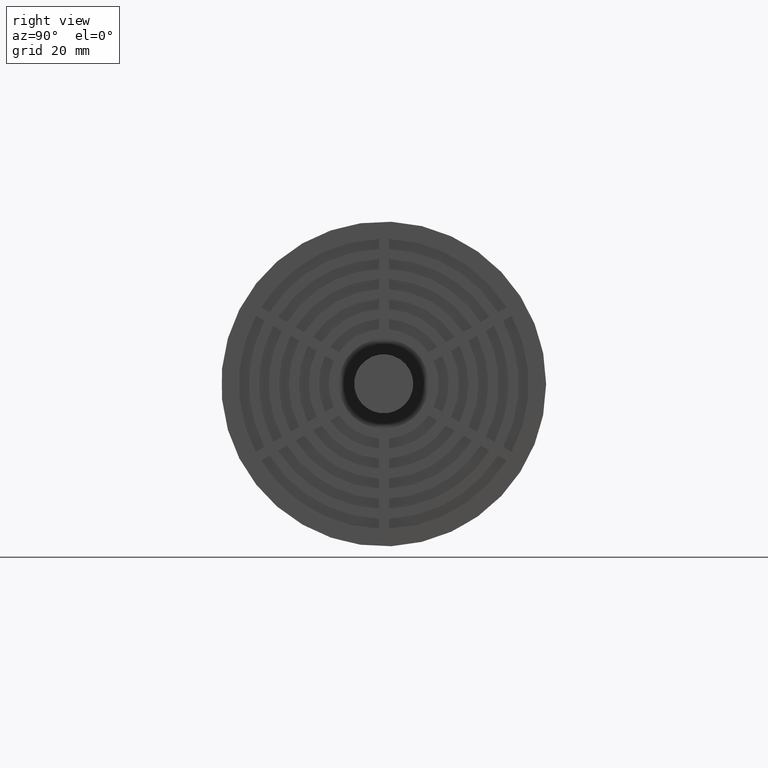
[diagram: clean part render]
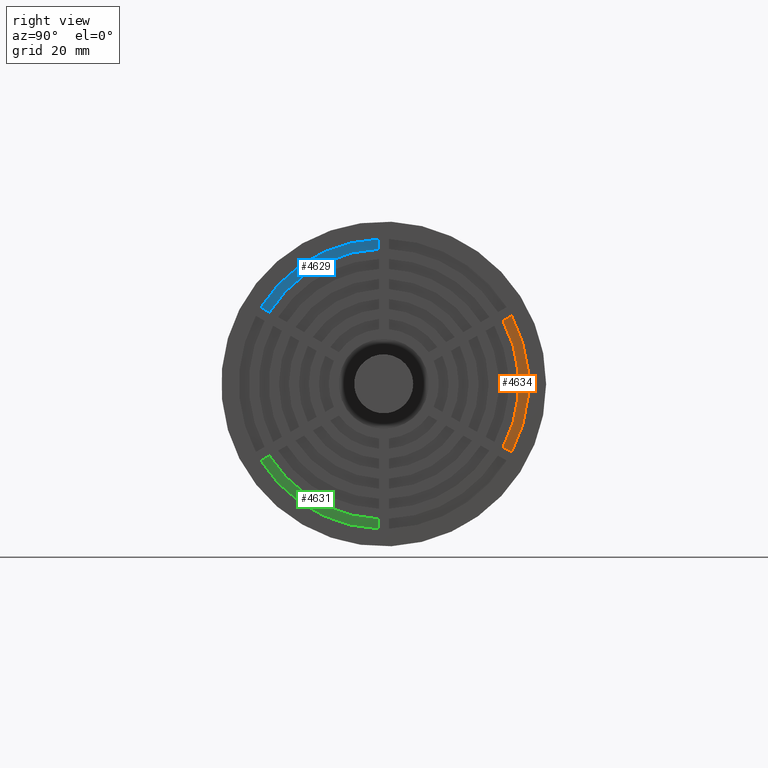
[diagram: same view with three faces highlighted in distinct colors, each labeled with its STEP entity id]
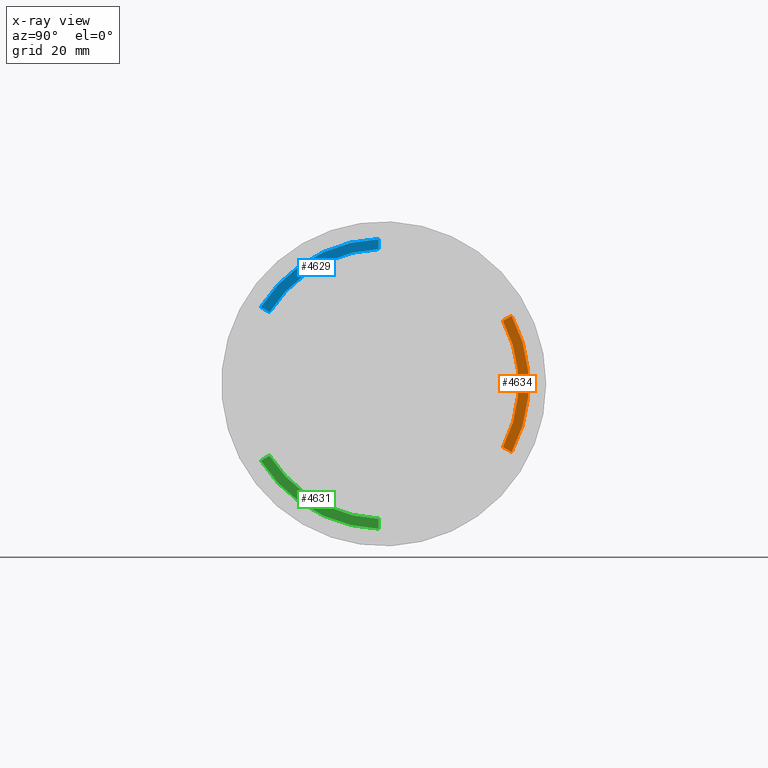
[diagram: x-ray of the same camera — body ghosted, the three highlighted faces saturated]
A machine part, right view with three faces highlighted in distinct colors.
The next image is the same camera in x-ray (body ghosted, the three faces saturated) — at least one of them is partly hidden behind the body in this view.
Their STEP definitions:

[orange] entity #4634 — the highlighted planar face has unit normal (-1, -0, 0).
#130=LINE('',#6799,#562);
#192=LINE('',#6940,#624);
#562=VECTOR('',#5340,2.00127836591479);
#624=VECTOR('',#5434,2.0012783659148);
#1064=PLANE('',#5011);
#1342=FACE_OUTER_BOUND('',#1629,.T.);
#1629=EDGE_LOOP('',(#3647,#3648,#3649,#3650));
#1936=CIRCLE('',#4984,29.);
#1953=CIRCLE('',#5012,27.);
#2096=VERTEX_POINT('',#6793);
#2098=VERTEX_POINT('',#6797);
#2159=VERTEX_POINT('',#6936);
#2161=VERTEX_POINT('',#6939);
#2543=EDGE_CURVE('',#2096,#2098,#130,.T.);
#2605=EDGE_CURVE('',#2161,#2159,#192,.T.);
#2830=EDGE_CURVE('',#2096,#2159,#1936,.T.);
#2851=EDGE_CURVE('',#2161,#2098,#1953,.T.);
#3647=ORIENTED_EDGE('',*,*,#2543,.T.);
#3648=ORIENTED_EDGE('',*,*,#2851,.F.);
#3649=ORIENTED_EDGE('',*,*,#2605,.T.);
#3650=ORIENTED_EDGE('',*,*,#2830,.F.);
#4634=ADVANCED_FACE('',(#1342),#1064,.F.);
#4984=AXIS2_PLACEMENT_3D('',#7410,#5897,#5898);
#5011=AXIS2_PLACEMENT_3D('',#7447,#5955,#5956);
#5012=AXIS2_PLACEMENT_3D('',#7448,#5957,#5958);
#5340=DIRECTION('',(1.59086285808736E-16,-0.866025403784439,-0.499999999999999));
#5434=DIRECTION('',(-1.59086285808736E-16,0.866025403784438,-0.500000000000001));
#5897=DIRECTION('center_axis',(-1.,-1.83697019872103E-16,0.));
#5898=DIRECTION('ref_axis',(0.,0.,1.));
#5955=DIRECTION('center_axis',(-1.,-1.83697019872103E-16,0.));
#5956=DIRECTION('ref_axis',(0.,0.,1.));
#5957=DIRECTION('center_axis',(1.,1.83697019872103E-16,0.));
#5958=DIRECTION('ref_axis',(0.,0.,1.));
#6793=CARTESIAN_POINT('',(21.5,25.5998007960223,13.625351342405));
#6797=CARTESIAN_POINT('',(21.5,23.8666428910959,12.6247121594476));
#6799=CARTESIAN_POINT('',(21.5,13.4903810567666,6.63397459621555));
#6936=CARTESIAN_POINT('',(21.5,25.5998007960223,-13.625351342405));
#6939=CARTESIAN_POINT('',(21.5,23.8666428910958,-12.6247121594476));
#6940=CARTESIAN_POINT('',(21.5,4.8301270189222,-1.63397459621557));
#7410=CARTESIAN_POINT('Origin',(21.5,1.44202160599601E-14,0.));
#7447=CARTESIAN_POINT('Origin',(21.5,1.2969683213952E-14,1.31685104508144E-15));
#7448=CARTESIAN_POINT('Origin',(21.5,1.44202160599601E-14,0.));

[blue] entity #4629 — the highlighted planar face has unit normal (-1, -0, 0).
#290=LINE('',#7159,#722);
#349=LINE('',#7436,#781);
#722=VECTOR('',#5580,2.0012783659148);
#781=VECTOR('',#5937,2.00127836591479);
#1059=PLANE('',#5001);
#1337=FACE_OUTER_BOUND('',#1624,.T.);
#1624=EDGE_LOOP('',(#3627,#3628,#3629,#3630));
#1926=CIRCLE('',#4969,29.);
#1948=CIRCLE('',#5002,27.);
#2256=VERTEX_POINT('',#7153);
#2258=VERTEX_POINT('',#7157);
#2319=VERTEX_POINT('',#7389);
#2327=VERTEX_POINT('',#7434);
#2703=EDGE_CURVE('',#2256,#2258,#290,.T.);
#2818=EDGE_CURVE('',#2256,#2319,#1926,.T.);
#2844=EDGE_CURVE('',#2327,#2258,#1948,.T.);
#2845=EDGE_CURVE('',#2327,#2319,#349,.T.);
#3627=ORIENTED_EDGE('',*,*,#2703,.T.);
#3628=ORIENTED_EDGE('',*,*,#2844,.F.);
#3629=ORIENTED_EDGE('',*,*,#2845,.T.);
#3630=ORIENTED_EDGE('',*,*,#2818,.F.);
#4629=ADVANCED_FACE('',(#1337),#1059,.F.);
#4969=AXIS2_PLACEMENT_3D('',#7390,#5865,#5866);
#5001=AXIS2_PLACEMENT_3D('',#7433,#5933,#5934);
#5002=AXIS2_PLACEMENT_3D('',#7435,#5935,#5936);
#5580=DIRECTION('',(-1.59086285808736E-16,0.866025403784439,-0.5));
#5865=DIRECTION('center_axis',(-1.,-1.83697019872103E-16,0.));
#5866=DIRECTION('ref_axis',(0.,0.,1.));
#5933=DIRECTION('center_axis',(-1.,-1.83697019872103E-16,0.));
#5934=DIRECTION('ref_axis',(0.,0.,1.));
#5935=DIRECTION('center_axis',(1.,1.83697019872103E-16,0.));
#5936=DIRECTION('ref_axis',(0.,0.,1.));
#5937=DIRECTION('',(-2.29437743644163E-32,1.2490009027033E-16,1.));
#7153=CARTESIAN_POINT('',(21.5,-24.5998007960222,15.3574021499739));
#7157=CARTESIAN_POINT('',(21.5,-22.8666428910958,14.3567629670165));
#7159=CARTESIAN_POINT('',(21.5,-12.4903810567666,8.36602540378444));
#7389=CARTESIAN_POINT('',(21.5,-0.999999999999982,28.9827534923789));
#7390=CARTESIAN_POINT('Origin',(21.5,1.44202160599601E-14,0.));
#7433=CARTESIAN_POINT('Origin',(21.5,1.2969683213952E-14,1.31685104508144E-15));
#7434=CARTESIAN_POINT('',(21.5,-0.999999999999982,26.9814751264641));
#7435=CARTESIAN_POINT('Origin',(21.5,1.44202160599601E-14,0.));
#7436=CARTESIAN_POINT('',(21.5,-0.999999999999985,5.));

[green] entity #4631 — the highlighted planar face has unit normal (-1, -0, 0).
#210=LINE('',#6979,#642);
#272=LINE('',#7120,#704);
#642=VECTOR('',#5460,2.00127836591479);
#704=VECTOR('',#5554,2.00127836591479);
#1061=PLANE('',#5005);
#1339=FACE_OUTER_BOUND('',#1626,.T.);
#1626=EDGE_LOOP('',(#3635,#3636,#3637,#3638));
#1930=CIRCLE('',#4975,29.);
#1950=CIRCLE('',#5006,27.);
#2176=VERTEX_POINT('',#6973);
#2178=VERTEX_POINT('',#6977);
#2239=VERTEX_POINT('',#7116);
#2241=VERTEX_POINT('',#7119);
#2623=EDGE_CURVE('',#2176,#2178,#210,.T.);
#2685=EDGE_CURVE('',#2241,#2239,#272,.T.);
#2823=EDGE_CURVE('',#2176,#2239,#1930,.T.);
#2847=EDGE_CURVE('',#2241,#2178,#1950,.T.);
#3635=ORIENTED_EDGE('',*,*,#2623,.T.);
#3636=ORIENTED_EDGE('',*,*,#2847,.F.);
#3637=ORIENTED_EDGE('',*,*,#2685,.T.);
#3638=ORIENTED_EDGE('',*,*,#2823,.F.);
#4631=ADVANCED_FACE('',(#1339),#1061,.F.);
#4975=AXIS2_PLACEMENT_3D('',#7398,#5878,#5879);
#5005=AXIS2_PLACEMENT_3D('',#7439,#5942,#5943);
#5006=AXIS2_PLACEMENT_3D('',#7440,#5944,#5945);
#5460=DIRECTION('',(0.,0.,1.));
#5554=DIRECTION('',(1.59086285808736E-16,-0.866025403784439,-0.5));
#5878=DIRECTION('center_axis',(-1.,-1.83697019872103E-16,0.));
#5879=DIRECTION('ref_axis',(0.,0.,1.));
#5942=DIRECTION('center_axis',(-1.,-1.83697019872103E-16,0.));
#5943=DIRECTION('ref_axis',(0.,0.,1.));
#5944=DIRECTION('center_axis',(1.,1.83697019872103E-16,0.));
#5945=DIRECTION('ref_axis',(0.,0.,1.));
#6973=CARTESIAN_POINT('',(21.5,-0.999999999999988,-28.9827534923789));
#6977=CARTESIAN_POINT('',(21.5,-0.999999999999988,-26.9814751264641));
#6979=CARTESIAN_POINT('',(21.5,-0.999999999999987,-15.));
#7116=CARTESIAN_POINT('',(21.5,-24.5998007960223,-15.3574021499739));
#7119=CARTESIAN_POINT('',(21.5,-22.8666428910958,-14.3567629670165));
#7120=CARTESIAN_POINT('',(21.5,-3.83012701892218,-3.36602540378444));
#7398=CARTESIAN_POINT('Origin',(21.5,1.44202160599601E-14,0.));
#7439=CARTESIAN_POINT('Origin',(21.5,1.2969683213952E-14,1.31685104508144E-15));
#7440=CARTESIAN_POINT('Origin',(21.5,1.44202160599601E-14,0.));